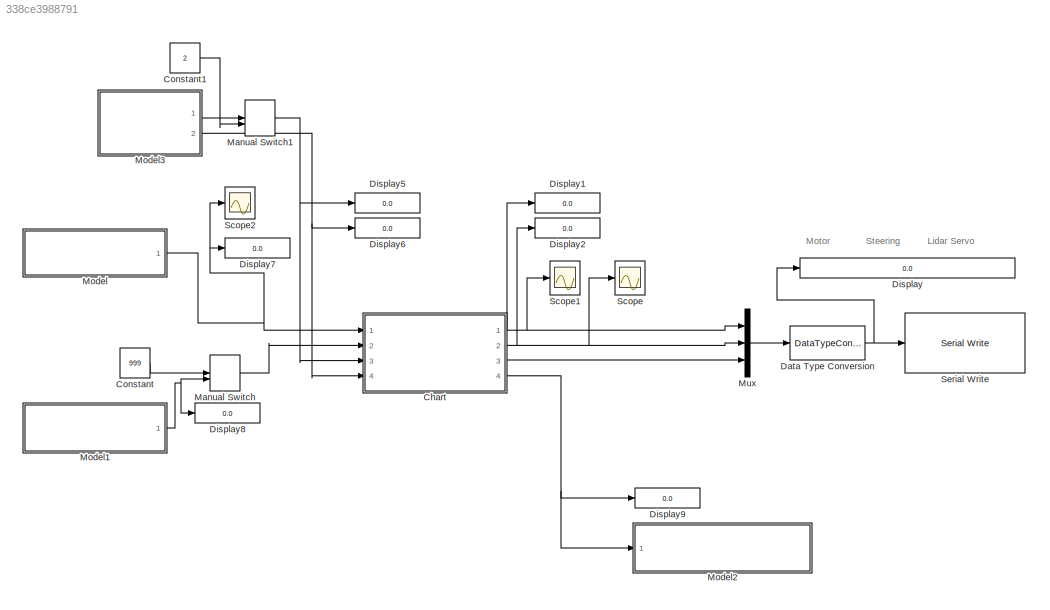
MODEL slx_338ce3988791
KIND model
CONFIG AbsTol = auto
CONFIG EnableMultiTasking = on
CONFIG FixedStep = auto
CONFIG MaxStep = auto
CONFIG MinStep = auto
CONFIG RelTol = 1e-3
CONFIG SampleTimeConstraint = Unconstrained
CONFIG Solver = FixedStepAuto
CONFIG SolverName = FixedStepAuto
CONFIG StartTime = 0.0
CONFIG StopTime = inf
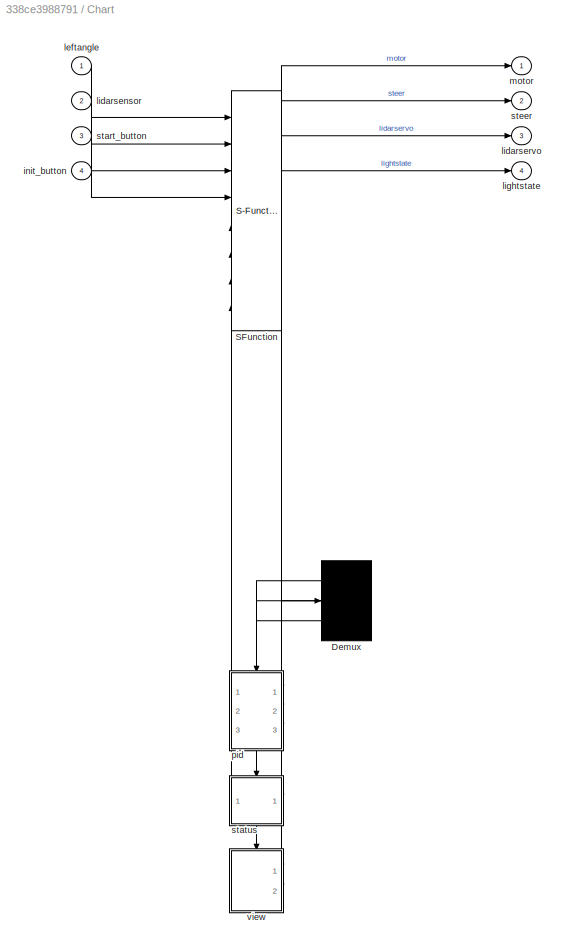
BLOCK [SubSystem] Chart
  ErrorFcn = Stateflow.Translate.translate
  PermitHierarchicalResolution = ExplicitOnly
  Ports = [4, 4]
  RequestExecContextInheritance = off
  SFBlockType = Chart
  TreatAsAtomicUnit = on
  Variant = off
BLOCK [Demux] Chart/ Demux 
  Outputs = 3
  Ports = [1, 3]
BLOCK [S-Function] Chart/ SFunction 
  EnableBusSupport = on
  FunctionName = sf_sfun
  PortCounts = [8 11]
  Ports = [8, 11]
  SFcnIsStateOwnerBlock = off
  SFunctionDeploymentMode = off
  Tag = Stateflow S-Function pi_controller 3
BLOCK [Inport] Chart/init_button
  IconDisplay = Port number
  Port = 4
BLOCK [Inport] Chart/leftangle
  IconDisplay = Port number
BLOCK [Inport] Chart/lidarsensor
  IconDisplay = Port number
  Port = 2
BLOCK [Outport] Chart/lidarservo
  IconDisplay = Port number
  Port = 3
BLOCK [Outport] Chart/lightstate
  IconDisplay = Port number
  Port = 4
BLOCK [Outport] Chart/motor
  IconDisplay = Port number
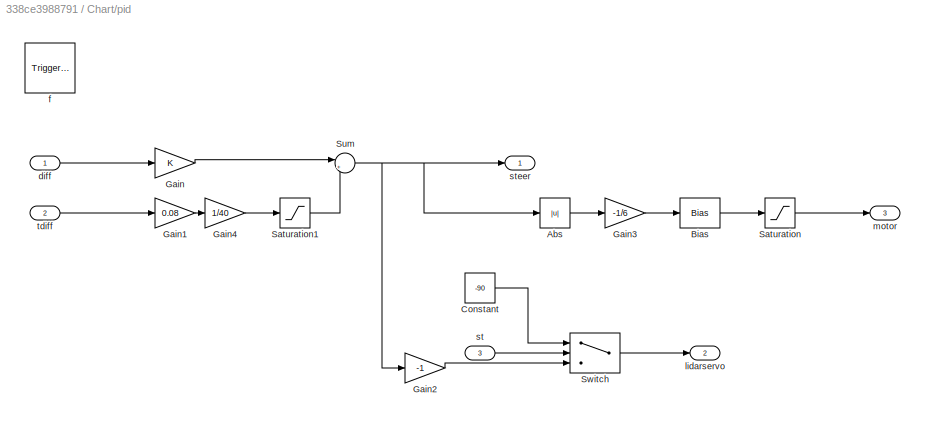
BLOCK [SubSystem] Chart/pid
  Ports = [3, 3, 0, 1]
  PreDeleteFcn = Stateflow.SLINSF.SimulinkMan.removePreDeleteFcn
  RequestExecContextInheritance = off
  UndoDeleteFcn = Stateflow.SLINSF.SimulinkMan.restorePreDeleteFcn
  Variant = off
BLOCK [Abs] Chart/pid/Abs
  SaturateOnIntegerOverflow = off
BLOCK [Bias] Chart/pid/Bias
  Bias = 30
  SaturateOnIntegerOverflow = off
BLOCK [Constant] Chart/pid/Constant
  Value = -90
BLOCK [Gain] Chart/pid/Gain
  OutDataTypeStr = Inherit: Inherit via internal rule
  ParamDataTypeStr = Inherit: Inherit via internal rule
  SaturateOnIntegerOverflow = off
BLOCK [Gain] Chart/pid/Gain1
  Gain = 0.08
  OutDataTypeStr = Inherit: Inherit via internal rule
  ParamDataTypeStr = Inherit: Inherit via internal rule
  SaturateOnIntegerOverflow = off
BLOCK [Gain] Chart/pid/Gain2
  Gain = -1
  OutDataTypeStr = Inherit: Inherit via internal rule
  ParamDataTypeStr = Inherit: Inherit via internal rule
  SaturateOnIntegerOverflow = off
BLOCK [Gain] Chart/pid/Gain3
  Gain = -1/6
  OutDataTypeStr = Inherit: Inherit via internal rule
  ParamDataTypeStr = Inherit: Inherit via internal rule
  SaturateOnIntegerOverflow = off
BLOCK [Gain] Chart/pid/Gain4
  Gain = 1/40
  OutDataTypeStr = Inherit: Inherit via internal rule
  ParamDataTypeStr = Inherit: Inherit via internal rule
  SaturateOnIntegerOverflow = off
BLOCK [Saturate] Chart/pid/Saturation
  InputPortMap = u0
  LowerLimit = 15
  Ports = [1, 1]
  UpperLimit = 30
BLOCK [Saturate] Chart/pid/Saturation1
  InputPortMap = u0
  LowerLimit = 0
  Ports = [1, 1]
  UpperLimit = 30
BLOCK [Sum] Chart/pid/Sum
  IconShape = round
  InputSameDT = off
  Inputs = |++
  OutDataTypeStr = Inherit: Inherit via internal rule
  Ports = [2, 1]
  SaturateOnIntegerOverflow = off
BLOCK [Switch] Chart/pid/Switch
  Criteria = u2 > Threshold
  InputSameDT = off
  SaturateOnIntegerOverflow = off
BLOCK [Inport] Chart/pid/diff
  IconDisplay = Port number
  OutDataTypeStr = double
  PortDimensions = 1
  SignalType = real
  VarSizeSig = No
BLOCK [TriggerPort] Chart/pid/f
  CopyFcn = Stateflow.SLINSF.SimulinkMan.removeBlockPreDeleteFcn
  Ports = []
  PreDeleteFcn = Stateflow.SLINSF.SimulinkMan.unsafePredeleteFcn
  StatesWhenEnabling = held
  TriggerType = function-call
  VariantControl = Variant
BLOCK [Outport] Chart/pid/lidarservo
  IconDisplay = Port number
  Port = 2
BLOCK [Outport] Chart/pid/motor
  IconDisplay = Port number
  Port = 3
BLOCK [Inport] Chart/pid/st
  IconDisplay = Port number
  OutDataTypeStr = double
  Port = 3
  PortDimensions = 1
  SignalType = real
  VarSizeSig = No
BLOCK [Outport] Chart/pid/steer
  IconDisplay = Port number
BLOCK [Inport] Chart/pid/tdiff
  IconDisplay = Port number
  OutDataTypeStr = double
  Port = 2
  PortDimensions = 1
  SignalType = real
  VarSizeSig = No
BLOCK [Inport] Chart/start_button
  IconDisplay = Port number
  Port = 3
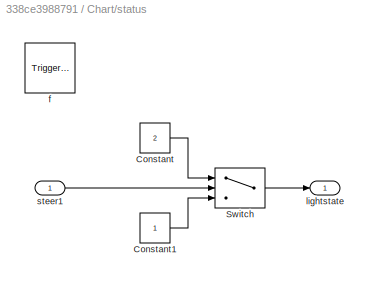
BLOCK [SubSystem] Chart/status
  Ports = [1, 1, 0, 1]
  PreDeleteFcn = Stateflow.SLINSF.SimulinkMan.removePreDeleteFcn
  RequestExecContextInheritance = off
  UndoDeleteFcn = Stateflow.SLINSF.SimulinkMan.restorePreDeleteFcn
  Variant = off
BLOCK [Constant] Chart/status/Constant
  Value = 2
BLOCK [Constant] Chart/status/Constant1
BLOCK [Switch] Chart/status/Switch
  Criteria = u2 > Threshold
  InputSameDT = off
  SaturateOnIntegerOverflow = off
  Threshold = 5
BLOCK [TriggerPort] Chart/status/f
  CopyFcn = Stateflow.SLINSF.SimulinkMan.removeBlockPreDeleteFcn
  Ports = []
  PreDeleteFcn = Stateflow.SLINSF.SimulinkMan.unsafePredeleteFcn
  StatesWhenEnabling = held
  TriggerType = function-call
  VariantControl = Variant
BLOCK [Outport] Chart/status/lightstate
  IconDisplay = Port number
BLOCK [Inport] Chart/status/steer1
  IconDisplay = Port number
  OutDataTypeStr = double
  PortDimensions = 1
  SignalType = real
  VarSizeSig = No
BLOCK [Outport] Chart/steer
  IconDisplay = Port number
  Port = 2
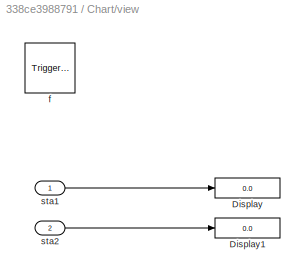
BLOCK [SubSystem] Chart/view
  Ports = [2, 0, 0, 1]
  PreDeleteFcn = Stateflow.SLINSF.SimulinkMan.removePreDeleteFcn
  RequestExecContextInheritance = off
  UndoDeleteFcn = Stateflow.SLINSF.SimulinkMan.restorePreDeleteFcn
  Variant = off
BLOCK [Display] Chart/view/Display
  Decimation = 1
  Ports = [1]
BLOCK [Display] Chart/view/Display1
  Decimation = 1
  Ports = [1]
BLOCK [TriggerPort] Chart/view/f
  CopyFcn = Stateflow.SLINSF.SimulinkMan.removeBlockPreDeleteFcn
  Ports = []
  PreDeleteFcn = Stateflow.SLINSF.SimulinkMan.unsafePredeleteFcn
  StatesWhenEnabling = held
  TriggerType = function-call
  VariantControl = Variant
BLOCK [Inport] Chart/view/sta1
  IconDisplay = Port number
  OutDataTypeStr = double
  PortDimensions = 1
  SignalType = real
  VarSizeSig = No
BLOCK [Inport] Chart/view/sta2
  IconDisplay = Port number
  OutDataTypeStr = double
  Port = 2
  PortDimensions = 1
  SignalType = real
  VarSizeSig = No
BLOCK [Constant] Constant
  Value = 999
BLOCK [Constant] Constant1
  Value = 2
BLOCK [DataTypeConversion] Data Type Conversion
  OutDataTypeStr = int8
  RndMeth = Floor
  SaturateOnIntegerOverflow = off
BLOCK [Display] Display
  Decimation = 1
  Ports = [1]
BLOCK [Display] Display1
  Decimation = 1
  Ports = [1]
BLOCK [Display] Display2
  Decimation = 1
  Ports = [1]
BLOCK [Display] Display5
  Decimation = 1
  Ports = [1]
BLOCK [Display] Display6
  Decimation = 1
  Ports = [1]
BLOCK [Display] Display7
  Decimation = 1
  Ports = [1]
BLOCK [Display] Display8
  Decimation = 1
  Ports = [1]
BLOCK [Display] Display9
  Decimation = 1
  Ports = [1]
BLOCK [ManualSwitch] Manual Switch
BLOCK [ManualSwitch] Manual Switch1
BLOCK [ModelReference] Model
  ModelNameDialog = picam_lanedepart.slx
  ModelReferenceVersion = 1.12
  Ports = [0, 1]
  Variant = off
BLOCK [ModelReference] Model1
  ModelNameDialog = pilidar_main.slx
  ModelReferenceVersion = 1.10
  Ports = [0, 1]
  Variant = off
BLOCK [ModelReference] Model2
  ModelNameDialog = pi_statelight.slx
  ModelReferenceVersion = 1.6
  Ports = [1]
  Variant = off
BLOCK [ModelReference] Model3
  ModelNameDialog = pi_button
  ModelReferenceVersion = 1.9
  Ports = [0, 2]
  Variant = off
BLOCK [Mux] Mux
  DisplayOption = bar
  Inputs = 3
  Ports = [3, 1]
BLOCK [Scope] Scope
  NumInputPorts = 1
  Ports = [1]
  ScopeSpecificationString = Simulink.scopes.TimeScopeBlockCfg('CurrentConfiguration', extmgr.ConfigurationSet(extmgr.Configuration('Core','General UI',true),extmgr.Configuration('Core','Source UI',true),extmgr.Configuration('Sources','WiredSimulink',true),extmgr.Configuration('Visuals','Time Domain',true,'SerializedDisplays',{struct('MinYLimReal','-1.00000','MaxYLimReal','1.00000','YLabelReal','','MinYLimMag','0.00000','MaxY...<+1360ch>
BLOCK [Scope] Scope1
  NumInputPorts = 1
  Ports = [1]
  ScopeSpecificationString = Simulink.scopes.TimeScopeBlockCfg('CurrentConfiguration', extmgr.ConfigurationSet(extmgr.Configuration('Core','General UI',true),extmgr.Configuration('Core','Source UI',true),extmgr.Configuration('Sources','WiredSimulink',true,'DataLoggingVariableName','ScopeData1'),extmgr.Configuration('Visuals','Time Domain',true,'SerializedDisplays',{struct('MinYLimReal','-8.70069','MaxYLimReal','39.92251','YLa...<+1392ch>
BLOCK [Scope] Scope2
  NumInputPorts = 1
  Ports = [1]
  ScopeSpecificationString = Simulink.scopes.TimeScopeBlockCfg('CurrentConfiguration', extmgr.ConfigurationSet(extmgr.Configuration('Core','General UI',true),extmgr.Configuration('Core','Source UI',true),extmgr.Configuration('Sources','WiredSimulink',true,'DataLoggingVariableName','ScopeData1'),extmgr.Configuration('Visuals','Time Domain',true,'SerializedDisplays',{struct('MinYLimReal','-4.74465','MaxYLimReal','117.17678','YL...<+1396ch>
BLOCK [Reference] Serial Write  REF=raspberrypilib/Serial Write
  Ports = [1]
  SourceBlock = raspberrypilib/Serial Write
  SourceProductBaseCode = RASPPI
  SourceProductName = Simulink Support Package for Raspberry Pi Hardware
  SourceType = Serial Write
ANNOTATION (root): Lidar Servo
ANNOTATION (root): Motor
ANNOTATION (root): Steering
NET Chart:1 -> Display1:1, Mux:1, Scope1:1
NET Chart:2 -> Display2:1, Mux:2, Scope:1
LINE Chart:3 -> Mux:3
NET Chart:4 -> Display9:1, Model2:1
LINE Constant1:1 -> Manual Switch1:2
LINE Constant:1 -> Manual Switch:1
NET Data Type Conversion:1 -> Display:1, Serial Write:1
NET Manual Switch1:1 -> Chart:3, Display5:1
LINE Manual Switch:1 -> Chart:2
NET Model1:1 -> Display8:1, Manual Switch:2
LINE Model3:1 -> Manual Switch1:1
NET Model3:2 -> Chart:4, Display6:1
NET Model:1 -> Chart:1, Display7:1, Scope2:1
LINE Mux:1 -> Data Type Conversion:1
note: NET lines group one-source signal fan-out (src -> all destinations, sorted); 1:1 wires keep LINE
CHART Chart states=13 transitions=19
  STATE_LABEL 'pre_start\nentry:\n\tst = 999;'
  STATE_LABEL 'init\nentry:\n\ttime = 0;\n\tlightstate = 2;\n\tcangle = leftangle\n\tst = 0;\nduring:\n\ttime = time + 1/40\n'
  STATE_LABEL 'start\nduring:\n\tlightstate = 0;\n'
  STATE_LABEL 'start_2\nentry:\n cangle = leftangle;\n'
  STATE_LABEL 'start_1\n'
  STATE_LABEL '[steer, lidarservo, motor] = pid(diff,tdiff,st)'
  STATE_LABEL 'steady\nentry:\n\tdiff = 0; tdiff = 0;\n\ttime = 0;\n\tlightstate = 0;\n\tmotor = 50; steer = 0; lidarservo = 0;\nduring:\n\tview(cangle,leftangle)\n\tst = 0;\n\tsaveangle = leftangle;\n\tdiff = leftangle - cangle; tdiff = tdiff + diff;\n\t[steer, lidarservo, motor] = pid(diff, tdiff, st);\n\tlightstate = status(steer);\n'
  STATE_LABEL 'evade_obstacle\nentry:\n\ttime = 0;\nduring:\n\tmotor = 20; steer = 45; lidarservo = -45;\n\ttime = time + 1/40;\n\tlightstate = 3;'
  STATE_LABEL 'lightstate = status(steer1)'
  STATE_LABEL 'view(sta1, sta2)'
  STATE_LABEL 'wait_to_return\nduring:\n\tst = 1;\n\tsaveangle = leftangle;\n\tdiff = leftangle - cangle; tdiff = tdiff + diff;\n\t[steer, lidarservo, motor] = pid(diff, tdiff, st);\n\tlightstate = status(steer);\n'
  STATE_LABEL 'wait_to_return1\nentry:\n\ttime = 0;\nduring:\n\ttime = time + 1/40;\n'
  STATE_LABEL 'return_to_lane\nentry:\n\ttime = 0;\nduring:\n\tmotor = 20; steer = -45; lidarservo = 45;\n\ttime = time + 1/40;\n\tlightstate = 3;'
